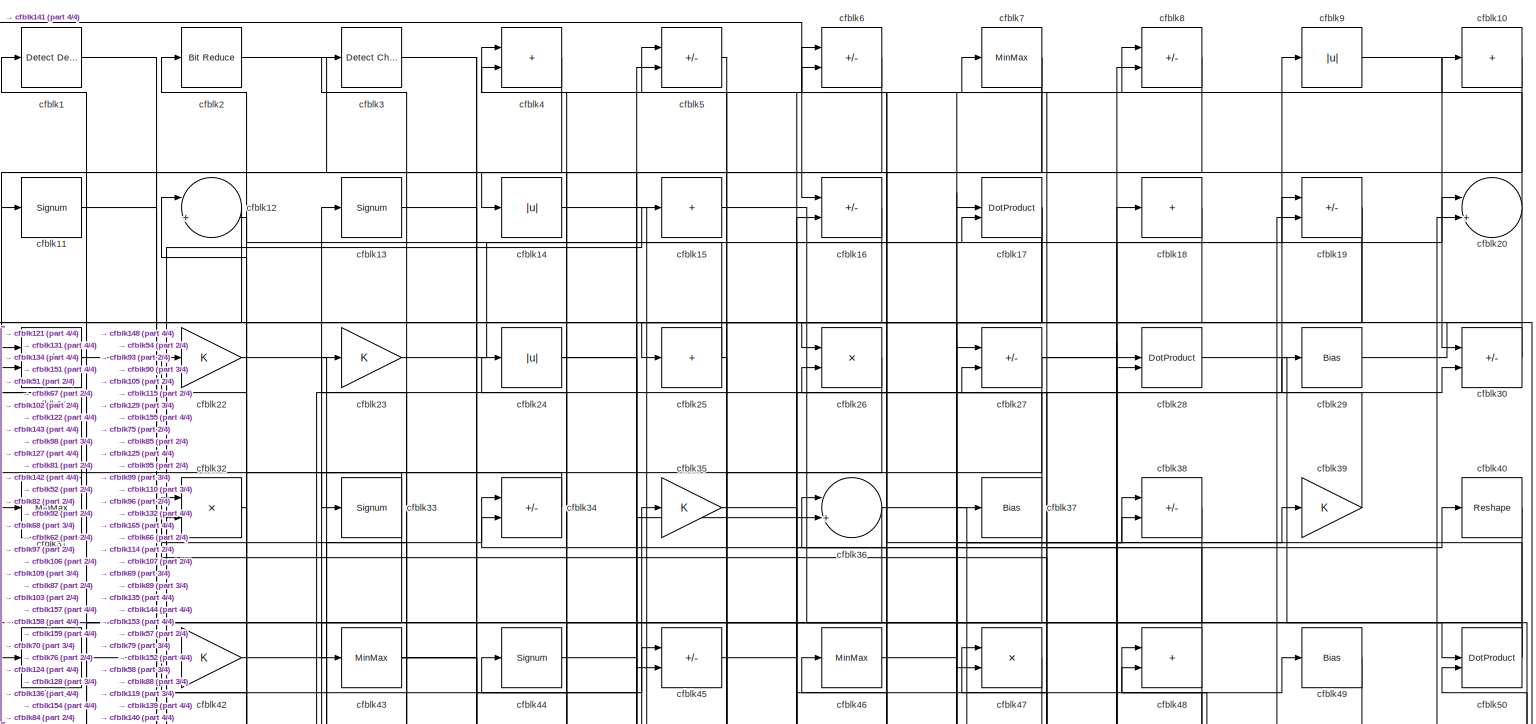
[diagram: root canvas - part 1/4, full width, top band]
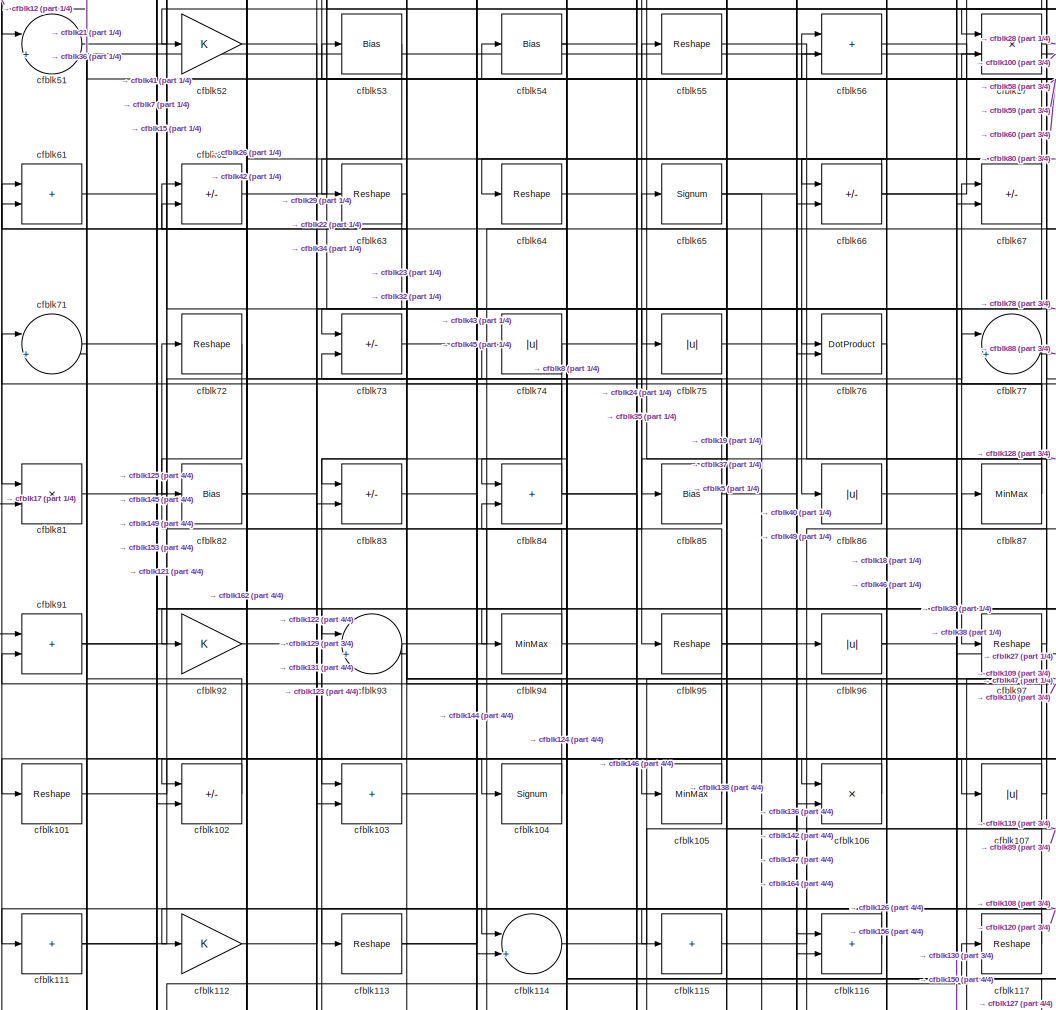
[diagram: root canvas - part 2/4, central region]
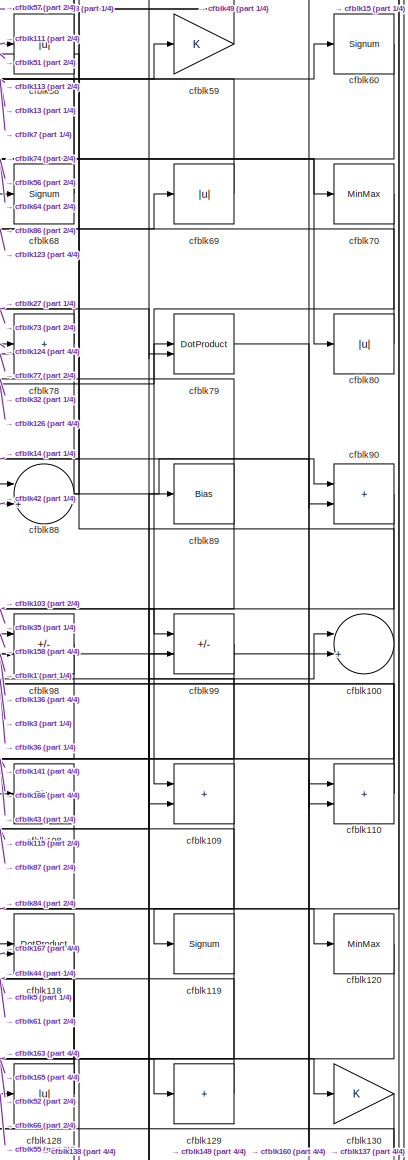
[diagram: root canvas - part 3/4, middle right region]
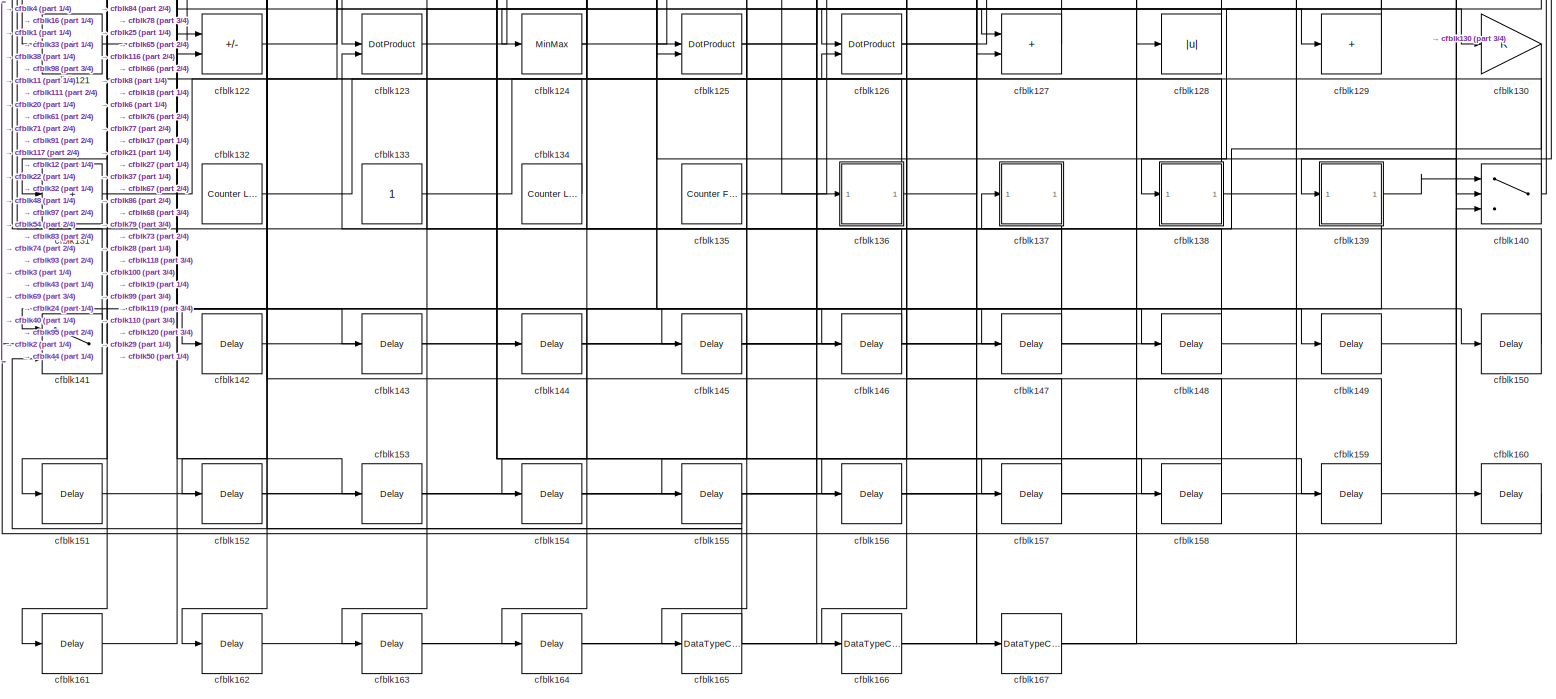
[diagram: root canvas - part 4/4, full width, bottom band]
MODEL slx_a714889f0463
KIND model
CONFIG AbsTol = auto
CONFIG EnableMultiTasking = off
CONFIG FixedStep = auto
CONFIG MaxStep = auto
CONFIG MinStep = auto
CONFIG RelTol = 1e-3
CONFIG SampleTimeConstraint = Unconstrained
CONFIG SolverName = VariableStepAuto
CONFIG StartTime = 0.0
CONFIG StopTime = 10.0
BLOCK [Reference] cfblk1  REF=simulink/Logic and Bit
Operations/Detect
Decrease
  LibrarySourceBlock = hdlsllib/Logic and Bit\nOperations/Detect\nDecrease
  SourceBlock = simulink/Logic and Bit\nOperations/Detect\nDecrease
  SourceType = Detect Decrease
BLOCK [Sum] cfblk10
  IconShape = rectangular
  Inputs = +
BLOCK [Sum] cfblk100
  Inputs = |++
BLOCK [Reshape] cfblk101
BLOCK [Sum] cfblk102
  IconShape = rectangular
  Inputs = +-
BLOCK [Sum] cfblk103
  IconShape = rectangular
BLOCK [Signum] cfblk104
BLOCK [MinMax] cfblk105
BLOCK [Product] cfblk106
  Inputs = */
  RndMeth = Zero
  SaturateOnIntegerOverflow = on
BLOCK [Abs] cfblk107
  SaturateOnIntegerOverflow = off
BLOCK [Bias] cfblk108
  Bias = 0.0
  SaturateOnIntegerOverflow = off
BLOCK [Sum] cfblk109
  IconShape = rectangular
BLOCK [Signum] cfblk11
BLOCK [Sum] cfblk110
  IconShape = rectangular
BLOCK [Sum] cfblk111
  IconShape = rectangular
  Inputs = +
BLOCK [Gain] cfblk112
BLOCK [Reshape] cfblk113
BLOCK [Sum] cfblk114
  Inputs = |++
BLOCK [Sum] cfblk115
  IconShape = rectangular
  Inputs = +
BLOCK [Sum] cfblk116
  IconShape = rectangular
BLOCK [Reshape] cfblk117
BLOCK [DotProduct] cfblk118
  OutDataTypeStr = Inherit: Inherit via internal rule
BLOCK [Signum] cfblk119
BLOCK [Sum] cfblk12
  Inputs = |++
BLOCK [MinMax] cfblk120
BLOCK [Sum] cfblk121
  IconShape = rectangular
  Inputs = +
BLOCK [Sum] cfblk122
  IconShape = rectangular
  Inputs = +-
BLOCK [DotProduct] cfblk123
  OutDataTypeStr = Inherit: Inherit via internal rule
BLOCK [MinMax] cfblk124
BLOCK [DotProduct] cfblk125
  OutDataTypeStr = Inherit: Inherit via internal rule
BLOCK [DotProduct] cfblk126
  OutDataTypeStr = Inherit: Inherit via internal rule
BLOCK [Sum] cfblk127
  IconShape = rectangular
BLOCK [Abs] cfblk128
  SaturateOnIntegerOverflow = off
BLOCK [Sum] cfblk129
  IconShape = rectangular
  Inputs = +
BLOCK [Signum] cfblk13
BLOCK [Gain] cfblk130
BLOCK [Sum] cfblk131
  IconShape = rectangular
  Inputs = +
BLOCK [Reference] cfblk132  REF=hdlsllib/Sources/Counter
Limited
  SourceBlock = hdlsllib/Sources/Counter\nLimited
  SourceType = Counter Limited
BLOCK [Constant] cfblk133
  SampleTime = -1
BLOCK [Reference] cfblk134  REF=hdlsllib/Sources/Counter
Limited
  SourceBlock = hdlsllib/Sources/Counter\nLimited
  SourceType = Counter Limited
BLOCK [Reference] cfblk135  REF=hdlsllib/Sources/Counter
Free-Running
  SourceBlock = hdlsllib/Sources/Counter\nFree-Running
  SourceType = Counter Free-Running
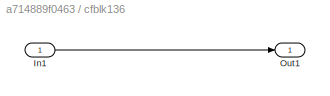
BLOCK [SubSystem] cfblk136
  LibrarySourceBlock = hdlsllib/Ports &\nSubsystems/Subsystem
BLOCK [Inport] cfblk136/In1
BLOCK [Outport] cfblk136/Out1
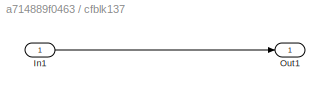
BLOCK [SubSystem] cfblk137
  LibrarySourceBlock = hdlsllib/Ports &\nSubsystems/Subsystem
BLOCK [Inport] cfblk137/In1
BLOCK [Outport] cfblk137/Out1
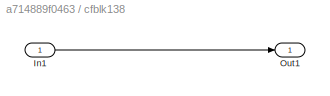
BLOCK [SubSystem] cfblk138
  LibrarySourceBlock = hdlsllib/Ports &\nSubsystems/Subsystem
BLOCK [Inport] cfblk138/In1
BLOCK [Outport] cfblk138/Out1
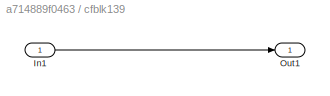
BLOCK [SubSystem] cfblk139
  LibrarySourceBlock = hdlsllib/Ports &\nSubsystems/Subsystem
BLOCK [Inport] cfblk139/In1
BLOCK [Outport] cfblk139/Out1
BLOCK [Abs] cfblk14
  SaturateOnIntegerOverflow = off
BLOCK [Switch] cfblk140
  InputSameDT = off
  SaturateOnIntegerOverflow = off
BLOCK [Switch] cfblk141
  InputSameDT = off
  SaturateOnIntegerOverflow = off
BLOCK [Delay] cfblk142
  InputPortMap = u0
  SampleTime = 1
BLOCK [Delay] cfblk143
  InputPortMap = u0
  SampleTime = 1
BLOCK [Delay] cfblk144
  InputPortMap = u0
  SampleTime = 1
BLOCK [Delay] cfblk145
  InputPortMap = u0
  SampleTime = 1
BLOCK [Delay] cfblk146
  InputPortMap = u0
  SampleTime = 1
BLOCK [Delay] cfblk147
  InputPortMap = u0
  SampleTime = 1
BLOCK [Delay] cfblk148
  InputPortMap = u0
  SampleTime = 1
BLOCK [Delay] cfblk149
  InputPortMap = u0
  SampleTime = 1
BLOCK [Sum] cfblk15
  IconShape = rectangular
  Inputs = +
BLOCK [Delay] cfblk150
  InputPortMap = u0
  SampleTime = 1
BLOCK [Delay] cfblk151
  InputPortMap = u0
  SampleTime = 1
BLOCK [Delay] cfblk152
  InputPortMap = u0
  SampleTime = 1
BLOCK [Delay] cfblk153
  InputPortMap = u0
  SampleTime = 1
BLOCK [Delay] cfblk154
  InputPortMap = u0
  SampleTime = 1
BLOCK [Delay] cfblk155
  InputPortMap = u0
  SampleTime = 1
BLOCK [Delay] cfblk156
  InputPortMap = u0
  SampleTime = 1
BLOCK [Delay] cfblk157
  InputPortMap = u0
  SampleTime = 1
BLOCK [Delay] cfblk158
  InputPortMap = u0
  SampleTime = 1
BLOCK [Delay] cfblk159
  InputPortMap = u0
  SampleTime = 1
BLOCK [Sum] cfblk16
  IconShape = rectangular
  Inputs = +-
BLOCK [Delay] cfblk160
  InputPortMap = u0
  SampleTime = 1
BLOCK [Delay] cfblk161
  InputPortMap = u0
  SampleTime = 1
BLOCK [Delay] cfblk162
  InputPortMap = u0
  SampleTime = 1
BLOCK [Delay] cfblk163
  InputPortMap = u0
  SampleTime = 1
BLOCK [Delay] cfblk164
  InputPortMap = u0
  SampleTime = 1
BLOCK [DataTypeConversion] cfblk165
  RndMeth = Floor
  SaturateOnIntegerOverflow = off
BLOCK [DataTypeConversion] cfblk166
  OutDataTypeStr = uint8
  RndMeth = Floor
  SaturateOnIntegerOverflow = off
BLOCK [DataTypeConversion] cfblk167
  OutDataTypeStr = uint8
  RndMeth = Floor
  SaturateOnIntegerOverflow = off
BLOCK [DotProduct] cfblk17
  OutDataTypeStr = Inherit: Inherit via internal rule
BLOCK [Sum] cfblk18
  IconShape = rectangular
  Inputs = +
BLOCK [Sum] cfblk19
  IconShape = rectangular
  Inputs = +-
BLOCK [Reference] cfblk2  REF=hdlsllib/Logic and Bit
Operations/Bit Reduce
  SourceBlock = hdlsllib/Logic and Bit\nOperations/Bit Reduce
  SourceType = Bit Reduce
BLOCK [Sum] cfblk20
  Inputs = |++
BLOCK [Sum] cfblk21
  IconShape = rectangular
  Inputs = +-
BLOCK [Gain] cfblk22
BLOCK [Gain] cfblk23
BLOCK [Abs] cfblk24
  SaturateOnIntegerOverflow = off
BLOCK [Sum] cfblk25
  IconShape = rectangular
  Inputs = +
BLOCK [Product] cfblk26
  Inputs = */
  RndMeth = Zero
  SaturateOnIntegerOverflow = on
BLOCK [Sum] cfblk27
  IconShape = rectangular
  Inputs = +-
BLOCK [DotProduct] cfblk28
  OutDataTypeStr = Inherit: Inherit via internal rule
BLOCK [Bias] cfblk29
  Bias = 0.0
  SaturateOnIntegerOverflow = off
BLOCK [Reference] cfblk3  REF=simulink/Logic and Bit
Operations/Detect
Change
  LibrarySourceBlock = hdlsllib/Logic and Bit\nOperations/Detect\nChange
  SourceBlock = simulink/Logic and Bit\nOperations/Detect\nChange
  SourceType = Detect Change
BLOCK [Sum] cfblk30
  IconShape = rectangular
  Inputs = +-
BLOCK [MinMax] cfblk31
BLOCK [Product] cfblk32
  Inputs = */
  RndMeth = Zero
  SaturateOnIntegerOverflow = on
BLOCK [Signum] cfblk33
BLOCK [Sum] cfblk34
  IconShape = rectangular
  Inputs = +-
BLOCK [Gain] cfblk35
BLOCK [Sum] cfblk36
  Inputs = |++
BLOCK [Bias] cfblk37
  Bias = 0.0
  SaturateOnIntegerOverflow = off
BLOCK [Sum] cfblk38
  IconShape = rectangular
  Inputs = +-
BLOCK [Gain] cfblk39
BLOCK [Sum] cfblk4
  IconShape = rectangular
BLOCK [Reshape] cfblk40
BLOCK [Bias] cfblk41
  Bias = 0.0
  SaturateOnIntegerOverflow = off
BLOCK [Gain] cfblk42
BLOCK [MinMax] cfblk43
BLOCK [Signum] cfblk44
BLOCK [Sum] cfblk45
  IconShape = rectangular
  Inputs = +-
BLOCK [MinMax] cfblk46
BLOCK [Product] cfblk47
  Inputs = */
  RndMeth = Zero
  SaturateOnIntegerOverflow = on
BLOCK [Sum] cfblk48
  IconShape = rectangular
BLOCK [Bias] cfblk49
  Bias = 0.0
  SaturateOnIntegerOverflow = off
BLOCK [Sum] cfblk5
  IconShape = rectangular
  Inputs = +-
BLOCK [DotProduct] cfblk50
  OutDataTypeStr = Inherit: Inherit via internal rule
BLOCK [Sum] cfblk51
  Inputs = |++
BLOCK [Gain] cfblk52
BLOCK [Bias] cfblk53
  Bias = 0.0
  SaturateOnIntegerOverflow = off
BLOCK [Bias] cfblk54
  Bias = 0.0
  SaturateOnIntegerOverflow = off
BLOCK [Reshape] cfblk55
BLOCK [Sum] cfblk56
  IconShape = rectangular
BLOCK [Product] cfblk57
  Inputs = */
  RndMeth = Zero
  SaturateOnIntegerOverflow = on
BLOCK [Abs] cfblk58
  SaturateOnIntegerOverflow = off
BLOCK [Gain] cfblk59
BLOCK [Sum] cfblk6
  IconShape = rectangular
  Inputs = +-
BLOCK [Signum] cfblk60
BLOCK [Sum] cfblk61
  IconShape = rectangular
BLOCK [Sum] cfblk62
  IconShape = rectangular
  Inputs = +-
BLOCK [Reshape] cfblk63
BLOCK [Reshape] cfblk64
BLOCK [Signum] cfblk65
BLOCK [Sum] cfblk66
  IconShape = rectangular
  Inputs = +-
BLOCK [Sum] cfblk67
  IconShape = rectangular
  Inputs = +-
BLOCK [Signum] cfblk68
BLOCK [Abs] cfblk69
  SaturateOnIntegerOverflow = off
BLOCK [MinMax] cfblk7
BLOCK [MinMax] cfblk70
BLOCK [Sum] cfblk71
  Inputs = |++
BLOCK [Reshape] cfblk72
BLOCK [Sum] cfblk73
  IconShape = rectangular
  Inputs = +-
BLOCK [Abs] cfblk74
  SaturateOnIntegerOverflow = off
BLOCK [Abs] cfblk75
  SaturateOnIntegerOverflow = off
BLOCK [DotProduct] cfblk76
  OutDataTypeStr = Inherit: Inherit via internal rule
BLOCK [Sum] cfblk77
  Inputs = |++
BLOCK [Sum] cfblk78
  IconShape = rectangular
  Inputs = +
BLOCK [DotProduct] cfblk79
  OutDataTypeStr = Inherit: Inherit via internal rule
BLOCK [Sum] cfblk8
  IconShape = rectangular
  Inputs = +-
BLOCK [Abs] cfblk80
  SaturateOnIntegerOverflow = off
BLOCK [Product] cfblk81
  Inputs = */
  RndMeth = Zero
  SaturateOnIntegerOverflow = on
BLOCK [Bias] cfblk82
  Bias = 0.0
  SaturateOnIntegerOverflow = off
BLOCK [Sum] cfblk83
  IconShape = rectangular
  Inputs = +-
BLOCK [Sum] cfblk84
  IconShape = rectangular
BLOCK [Bias] cfblk85
  Bias = 0.0
  SaturateOnIntegerOverflow = off
BLOCK [Abs] cfblk86
  SaturateOnIntegerOverflow = off
BLOCK [MinMax] cfblk87
BLOCK [Sum] cfblk88
  Inputs = |++
BLOCK [Bias] cfblk89
  Bias = 0.0
  SaturateOnIntegerOverflow = off
BLOCK [Abs] cfblk9
  SaturateOnIntegerOverflow = off
BLOCK [Sum] cfblk90
  IconShape = rectangular
BLOCK [Sum] cfblk91
  IconShape = rectangular
BLOCK [Gain] cfblk92
BLOCK [Sum] cfblk93
  Inputs = |++
BLOCK [MinMax] cfblk94
BLOCK [Reshape] cfblk95
BLOCK [Abs] cfblk96
  SaturateOnIntegerOverflow = off
BLOCK [Reshape] cfblk97
BLOCK [Sum] cfblk98
  IconShape = rectangular
  Inputs = +-
BLOCK [Sum] cfblk99
  IconShape = rectangular
  Inputs = +-
NET cfblk100:1 -> cfblk108:1, cfblk51:2
LINE cfblk101:1 -> cfblk104:1
LINE cfblk102:1 -> cfblk71:2
LINE cfblk103:1 -> cfblk45:1
LINE cfblk104:1 -> cfblk53:1
LINE cfblk105:1 -> cfblk91:2
LINE cfblk106:1 -> cfblk32:1
NET cfblk107:1 -> cfblk106:1, cfblk27:2
LINE cfblk108:1 -> cfblk111:1
NET cfblk109:1 -> cfblk113:1, cfblk3:1
LINE cfblk10:1 -> cfblk11:1
NET cfblk110:1 -> cfblk36:1, cfblk61:2
NET cfblk111:1 -> cfblk153:1, cfblk58:1
LINE cfblk112:1 -> cfblk74:1
NET cfblk113:1 -> cfblk56:2, cfblk59:1
LINE cfblk114:1 -> cfblk96:1
LINE cfblk115:1 -> cfblk89:1
LINE cfblk116:1 -> cfblk112:1
LINE cfblk117:1 -> cfblk55:1
LINE cfblk118:1 -> cfblk165:1
NET cfblk119:1 -> cfblk163:1, cfblk87:1
LINE cfblk11:1 -> cfblk143:1
LINE cfblk120:1 -> cfblk138:1
LINE cfblk121:1 -> cfblk117:1
LINE cfblk122:1 -> cfblk54:1
LINE cfblk123:1 -> cfblk69:1
NET cfblk124:1 -> cfblk24:1, cfblk78:1
NET cfblk125:1 -> cfblk127:1, cfblk8:1
NET cfblk126:1 -> cfblk68:1, cfblk79:1
LINE cfblk127:1 -> cfblk73:2
NET cfblk128:1 -> cfblk44:1, cfblk61:1
LINE cfblk129:1 -> cfblk5:1
LINE cfblk12:1 -> cfblk81:1
LINE cfblk130:1 -> cfblk137:1
LINE cfblk131:1 -> cfblk83:2
LINE cfblk132:1 -> cfblk17:1
LINE cfblk133:1 -> cfblk126:2
LINE cfblk134:1 -> cfblk1:1
LINE cfblk135:1 -> cfblk18:1
LINE cfblk136/In1:1 -> cfblk136/Out1:1
NET cfblk136:1 -> cfblk100:2, cfblk4:1
LINE cfblk137/In1:1 -> cfblk137/Out1:1
LINE cfblk137:1 -> cfblk164:1
LINE cfblk138/In1:1 -> cfblk138/Out1:1
NET cfblk138:1 -> cfblk100:1, cfblk65:1
LINE cfblk139/In1:1 -> cfblk139/Out1:1
NET cfblk139:1 -> cfblk140:1, cfblk161:1
LINE cfblk13:1 -> cfblk70:1
NET cfblk140:1 -> cfblk22:1, cfblk50:2
LINE cfblk141:1 -> cfblk16:1
LINE cfblk142:1 -> cfblk116:1
LINE cfblk143:1 -> cfblk19:2
LINE cfblk144:1 -> cfblk28:2
LINE cfblk145:1 -> cfblk67:2
LINE cfblk146:1 -> cfblk93:2
LINE cfblk147:1 -> cfblk91:1
LINE cfblk148:1 -> cfblk123:2
LINE cfblk149:1 -> cfblk110:1
LINE cfblk14:1 -> cfblk90:2
LINE cfblk150:1 -> cfblk84:2
LINE cfblk151:1 -> cfblk20:2
LINE cfblk152:1 -> cfblk27:1
LINE cfblk153:1 -> cfblk8:2
LINE cfblk154:1 -> cfblk16:2
LINE cfblk155:1 -> cfblk141:3
LINE cfblk156:1 -> cfblk167:1
LINE cfblk157:1 -> cfblk12:2
LINE cfblk158:1 -> cfblk98:1
LINE cfblk159:1 -> cfblk6:2
LINE cfblk15:1 -> cfblk119:1
LINE cfblk160:1 -> cfblk141:2
LINE cfblk161:1 -> cfblk122:1
LINE cfblk162:1 -> cfblk140:3
LINE cfblk163:1 -> cfblk99:2
LINE cfblk164:1 -> cfblk66:2
NET cfblk165:1 -> cfblk12:1, cfblk37:1
LINE cfblk166:1 -> cfblk118:1
LINE cfblk167:1 -> cfblk118:2
LINE cfblk16:1 -> cfblk41:1
NET cfblk17:1 -> cfblk45:2, cfblk47:2, cfblk81:2
LINE cfblk18:1 -> cfblk66:1
NET cfblk19:1 -> cfblk105:1, cfblk52:1
LINE cfblk1:1 -> cfblk98:2
NET cfblk20:1 -> cfblk122:2, cfblk6:1
LINE cfblk21:1 -> cfblk127:2
LINE cfblk22:1 -> cfblk97:1
LINE cfblk23:1 -> cfblk19:1
NET cfblk24:1 -> cfblk106:2, cfblk140:2
NET cfblk25:1 -> cfblk155:1, cfblk2:1
LINE cfblk26:1 -> cfblk92:1
NET cfblk27:1 -> cfblk115:1, cfblk20:1, cfblk79:2
LINE cfblk28:1 -> cfblk50:1
LINE cfblk29:1 -> cfblk139:1
LINE cfblk2:1 -> cfblk125:1
LINE cfblk30:1 -> cfblk25:1
LINE cfblk31:1 -> cfblk21:1
LINE cfblk32:1 -> cfblk142:1
NET cfblk33:1 -> cfblk151:1, cfblk31:1
LINE cfblk34:1 -> cfblk33:1
LINE cfblk35:1 -> cfblk99:1
NET cfblk36:1 -> cfblk38:2, cfblk51:1
NET cfblk37:1 -> cfblk26:2, cfblk85:1
LINE cfblk38:1 -> cfblk131:1
LINE cfblk39:1 -> cfblk9:1
NET cfblk3:1 -> cfblk158:1, cfblk159:1
LINE cfblk40:1 -> cfblk154:1
LINE cfblk41:1 -> cfblk93:1
LINE cfblk42:1 -> cfblk88:2
NET cfblk43:1 -> cfblk110:2, cfblk157:1, cfblk76:2
LINE cfblk44:1 -> cfblk148:1
LINE cfblk45:1 -> cfblk30:2
LINE cfblk46:1 -> cfblk10:1
LINE cfblk47:1 -> cfblk114:1
NET cfblk48:1 -> cfblk152:1, cfblk34:1
LINE cfblk49:1 -> cfblk88:1
LINE cfblk4:1 -> cfblk121:1
NET cfblk50:1 -> cfblk43:1, cfblk4:2
LINE cfblk51:1 -> cfblk5:2
LINE cfblk52:1 -> cfblk129:1
LINE cfblk53:1 -> cfblk102:1
NET cfblk54:1 -> cfblk36:2, cfblk94:1
LINE cfblk55:1 -> cfblk128:1
LINE cfblk56:1 -> cfblk80:1
LINE cfblk57:1 -> cfblk28:1
NET cfblk58:1 -> cfblk48:1, cfblk86:1
LINE cfblk59:1 -> cfblk57:1
LINE cfblk5:1 -> cfblk75:1
LINE cfblk60:1 -> cfblk64:1
LINE cfblk61:1 -> cfblk149:1
LINE cfblk62:1 -> cfblk34:2
NET cfblk63:1 -> cfblk103:2, cfblk83:1
LINE cfblk64:1 -> cfblk76:1
NET cfblk65:1 -> cfblk136:1, cfblk147:1
NET cfblk66:1 -> cfblk130:1, cfblk38:1, cfblk63:1
NET cfblk67:1 -> cfblk21:2, cfblk95:1
LINE cfblk68:1 -> cfblk13:1
LINE cfblk69:1 -> cfblk7:1
LINE cfblk6:1 -> cfblk14:1
LINE cfblk70:1 -> cfblk109:1
LINE cfblk71:1 -> cfblk145:1
LINE cfblk72:1 -> cfblk82:1
LINE cfblk73:1 -> cfblk144:1
NET cfblk74:1 -> cfblk123:1, cfblk60:1
LINE cfblk75:1 -> cfblk40:1
LINE cfblk76:1 -> cfblk156:1
LINE cfblk77:1 -> cfblk126:1
LINE cfblk78:1 -> cfblk73:1
LINE cfblk79:1 -> cfblk160:1
NET cfblk7:1 -> cfblk102:2, cfblk26:1
LINE cfblk80:1 -> cfblk57:2
LINE cfblk81:1 -> cfblk15:1
NET cfblk82:1 -> cfblk29:1, cfblk42:1
LINE cfblk83:1 -> cfblk114:2
NET cfblk84:1 -> cfblk120:1, cfblk146:1, cfblk71:1
NET cfblk85:1 -> cfblk17:2, cfblk62:1
LINE cfblk86:1 -> cfblk150:1
NET cfblk87:1 -> cfblk23:1, cfblk77:1
NET cfblk88:1 -> cfblk48:2, cfblk77:2, cfblk90:1
NET cfblk89:1 -> cfblk103:1, cfblk32:2
LINE cfblk8:1 -> cfblk84:1
LINE cfblk90:1 -> cfblk109:2
NET cfblk91:1 -> cfblk125:2, cfblk67:1
LINE cfblk92:1 -> cfblk107:1
NET cfblk93:1 -> cfblk101:1, cfblk35:1
NET cfblk94:1 -> cfblk56:1, cfblk72:1
NET cfblk95:1 -> cfblk116:2, cfblk124:1, cfblk49:1, cfblk62:2
NET cfblk96:1 -> cfblk39:1, cfblk46:1
NET cfblk97:1 -> cfblk162:1, cfblk47:1
LINE cfblk98:1 -> cfblk141:1
LINE cfblk99:1 -> cfblk166:1
LINE cfblk9:1 -> cfblk30:1
note: NET lines group one-source signal fan-out (src -> all destinations, sorted); 1:1 wires keep LINE
